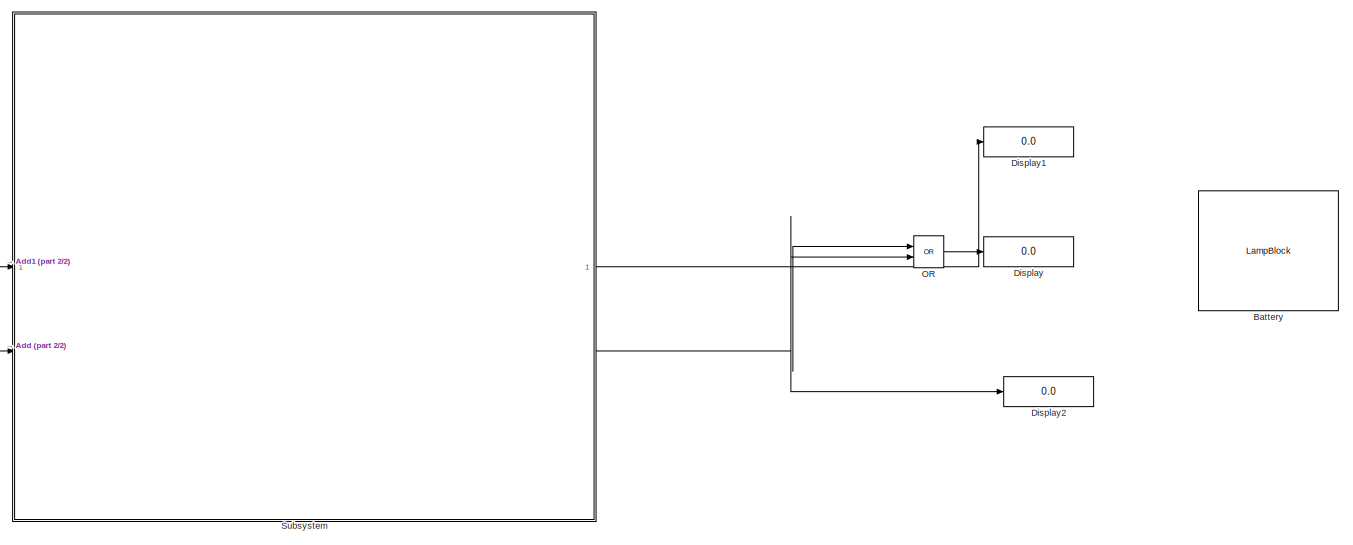
[diagram: root canvas - part 1/2, center side, full height]
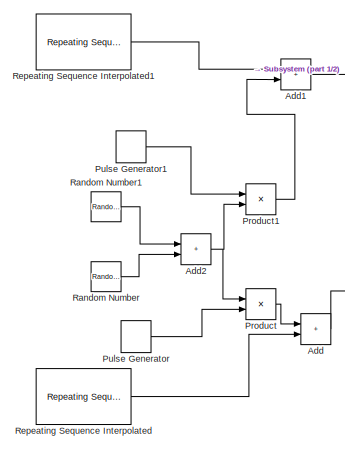
[diagram: root canvas - part 2/2, left side, full height]
MODEL slx_61902cf18430
KIND model
CONFIG AbsTol = auto
CONFIG EnableMultiTasking = off
CONFIG FixedStep = auto
CONFIG MaxStep = auto
CONFIG MinStep = auto
CONFIG RelTol = 1e-3
CONFIG SampleTimeConstraint = Unconstrained
CONFIG SolverName = VariableStepAuto
CONFIG StartTime = 0.0
CONFIG StopTime = inf
BLOCK [Sum] Add
  IconShape = rectangular
BLOCK [Sum] Add1
  IconShape = rectangular
BLOCK [Sum] Add2
  IconShape = rectangular
BLOCK [LampBlock] Battery
  Icon = Battery
  LabelPosition = Bottom
BLOCK [Display] Display
  Decimation = 1
BLOCK [Display] Display1
  Decimation = 1
BLOCK [Display] Display2
  Decimation = 1
BLOCK [Logic] OR
  AllPortsSameDT = off
  IconShape = distinctive
  Operator = OR
  OutDataTypeStr = boolean
BLOCK [Product] Product
BLOCK [Product] Product1
BLOCK [DiscretePulseGenerator] Pulse Generator
  Period = 22
  PhaseDelay = 20
  PulseType = Time based
  PulseWidth = 2
BLOCK [DiscretePulseGenerator] Pulse Generator1
  Period = 37
  PhaseDelay = 40
  PulseType = Time based
  PulseWidth = 2
BLOCK [RandomNumber] Random Number
  SampleTime = 0.1
  Variance = 7
BLOCK [RandomNumber] Random Number1
  Mean = -5
  SampleTime = 0.1
  Variance = 13
BLOCK [Reference] Repeating Sequence Interpolated  REF=simulink/Sources/Repeating
Sequence
Interpolated
  SourceBlock = simulink/Sources/Repeating\nSequence\nInterpolated
  SourceType = Repeating Sequence Interpolated
BLOCK [Reference] Repeating Sequence Interpolated1  REF=simulink/Sources/Repeating
Sequence
Interpolated
  SourceBlock = simulink/Sources/Repeating\nSequence\nInterpolated
  SourceType = Repeating Sequence Interpolated
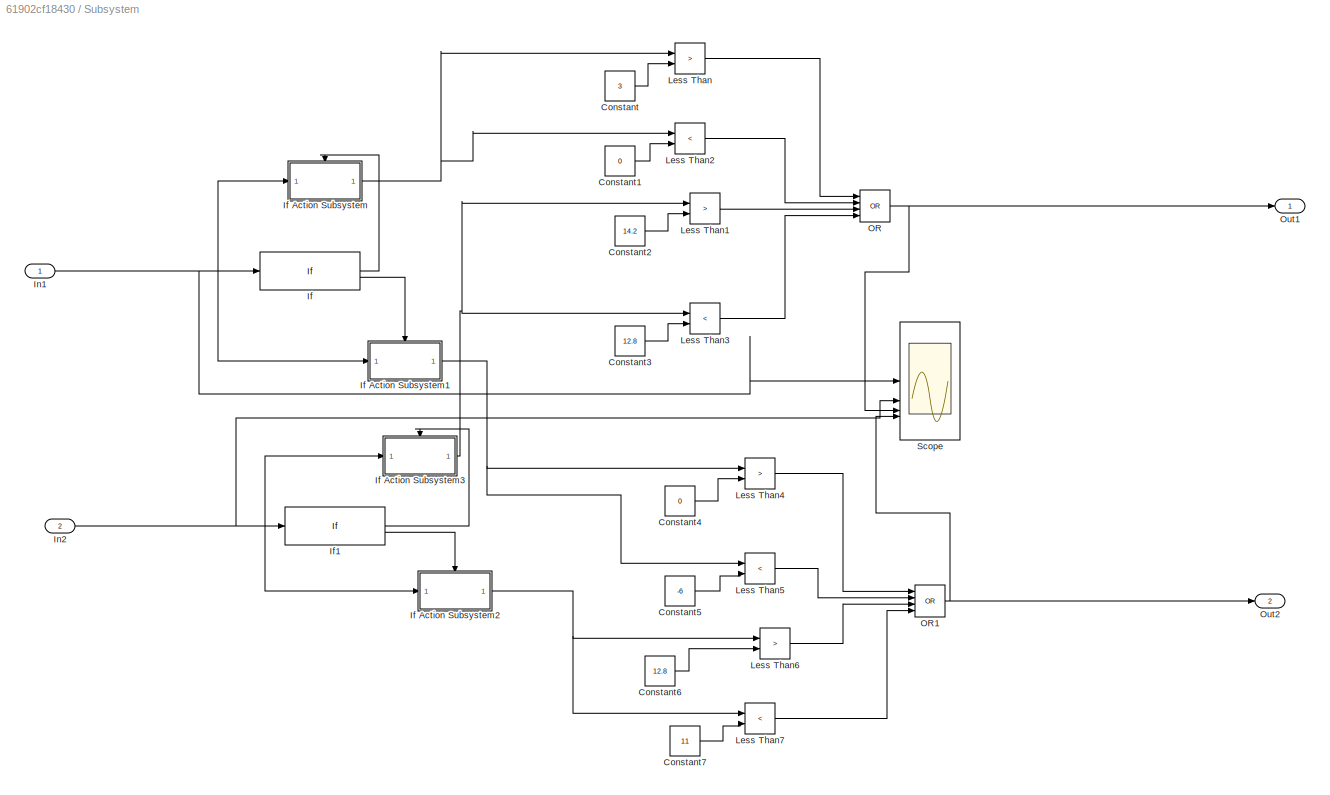
BLOCK [SubSystem] Subsystem
BLOCK [Constant] Subsystem/Constant
  Value = 3
BLOCK [Constant] Subsystem/Constant1
  Value = 0
BLOCK [Constant] Subsystem/Constant2
  Value = 14.2
BLOCK [Constant] Subsystem/Constant3
  Value = 12.8
BLOCK [Constant] Subsystem/Constant4
  Value = 0
BLOCK [Constant] Subsystem/Constant5
  Value = -6
BLOCK [Constant] Subsystem/Constant6
  Value = 12.8
BLOCK [Constant] Subsystem/Constant7
  Value = 11
BLOCK [If] Subsystem/If
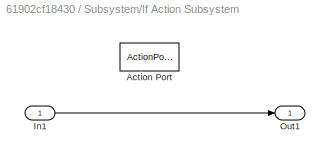
BLOCK [SubSystem] Subsystem/If Action Subsystem
  TreatAsAtomicUnit = on
BLOCK [ActionPort] Subsystem/If Action Subsystem/Action Port
  ActionPortLabel = if(u1 > 0)
BLOCK [Inport] Subsystem/If Action Subsystem/In1
BLOCK [Outport] Subsystem/If Action Subsystem/Out1
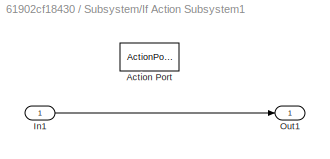
BLOCK [SubSystem] Subsystem/If Action Subsystem1
  TreatAsAtomicUnit = on
BLOCK [ActionPort] Subsystem/If Action Subsystem1/Action Port
  ActionPortLabel = else
BLOCK [Inport] Subsystem/If Action Subsystem1/In1
BLOCK [Outport] Subsystem/If Action Subsystem1/Out1
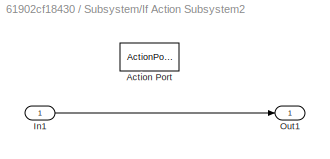
BLOCK [SubSystem] Subsystem/If Action Subsystem2
  TreatAsAtomicUnit = on
BLOCK [ActionPort] Subsystem/If Action Subsystem2/Action Port
  ActionPortLabel = else
BLOCK [Inport] Subsystem/If Action Subsystem2/In1
BLOCK [Outport] Subsystem/If Action Subsystem2/Out1
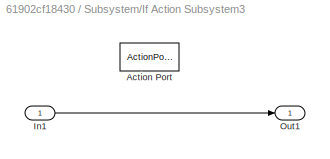
BLOCK [SubSystem] Subsystem/If Action Subsystem3
  TreatAsAtomicUnit = on
BLOCK [ActionPort] Subsystem/If Action Subsystem3/Action Port
  ActionPortLabel = if(u1 > 12.8)
BLOCK [Inport] Subsystem/If Action Subsystem3/In1
BLOCK [Outport] Subsystem/If Action Subsystem3/Out1
BLOCK [If] Subsystem/If1
  IfExpression = u1 > 12.8
BLOCK [Inport] Subsystem/In1
BLOCK [Inport] Subsystem/In2
  Port = 2
BLOCK [RelationalOperator] Subsystem/Less Than
  InputSameDT = off
  Operator = >
  OutDataTypeStr = boolean
  RndMeth = Simplest
BLOCK [RelationalOperator] Subsystem/Less Than1
  InputSameDT = off
  Operator = >
  OutDataTypeStr = boolean
  RndMeth = Simplest
BLOCK [RelationalOperator] Subsystem/Less Than2
  InputSameDT = off
  Operator = <
  OutDataTypeStr = boolean
  RndMeth = Simplest
BLOCK [RelationalOperator] Subsystem/Less Than3
  InputSameDT = off
  Operator = <
  OutDataTypeStr = boolean
  RndMeth = Simplest
BLOCK [RelationalOperator] Subsystem/Less Than4
  InputSameDT = off
  Operator = >
  OutDataTypeStr = boolean
  RndMeth = Simplest
BLOCK [RelationalOperator] Subsystem/Less Than5
  InputSameDT = off
  Operator = <
  OutDataTypeStr = boolean
  RndMeth = Simplest
BLOCK [RelationalOperator] Subsystem/Less Than6
  InputSameDT = off
  Operator = >
  OutDataTypeStr = boolean
  RndMeth = Simplest
BLOCK [RelationalOperator] Subsystem/Less Than7
  InputSameDT = off
  Operator = <
  OutDataTypeStr = boolean
  RndMeth = Simplest
BLOCK [Logic] Subsystem/OR
  AllPortsSameDT = off
  IconShape = distinctive
  Inputs = 4
  Operator = OR
  OutDataTypeStr = boolean
BLOCK [Logic] Subsystem/OR1
  AllPortsSameDT = off
  IconShape = distinctive
  Inputs = 4
  Operator = OR
  OutDataTypeStr = boolean
BLOCK [Outport] Subsystem/Out1
BLOCK [Outport] Subsystem/Out2
  Port = 2
BLOCK [Scope] Subsystem/Scope
  Floating = off
  NumInputPorts = 4
  ScopeSpecificationString = Simulink.scopes.TimeScopeBlockCfg('CurrentConfiguration', extmgr.ConfigurationSet(extmgr.Configuration('Core','General UI',true),extmgr.Configuration('Core','Source UI',true),extmgr.Configuration('Sources','WiredSimulink',true),extmgr.Configuration('Visuals','Time Domain',true,'SerializedDisplays',{struct('MinYLimReal','-7.125','MaxYLimReal','4.125','YLabelReal','','MinYLimMag','0.00000','MaxYLimM...<+3352ch>
LINE Add1:1 -> Subsystem:1
NET Add2:1 -> Product1:2, Product:1
LINE Add:1 -> Subsystem:2
LINE OR:1 -> Display:1
LINE Product1:1 -> Add1:2
LINE Product:1 -> Add:1
LINE Pulse Generator1:1 -> Product1:1
LINE Pulse Generator:1 -> Product:2
LINE Random Number1:1 -> Add2:1
LINE Random Number:1 -> Add2:2
LINE Repeating Sequence Interpolated1:1 -> Add1:1
LINE Repeating Sequence Interpolated:1 -> Add:2
LINE Subsystem/Constant1:1 -> Subsystem/Less Than2:2
LINE Subsystem/Constant2:1 -> Subsystem/Less Than1:2
LINE Subsystem/Constant3:1 -> Subsystem/Less Than3:2
LINE Subsystem/Constant4:1 -> Subsystem/Less Than4:2
LINE Subsystem/Constant5:1 -> Subsystem/Less Than5:2
LINE Subsystem/Constant6:1 -> Subsystem/Less Than6:2
LINE Subsystem/Constant7:1 -> Subsystem/Less Than7:2
LINE Subsystem/Constant:1 -> Subsystem/Less Than:2
LINE Subsystem/If Action Subsystem/In1:1 -> Subsystem/If Action Subsystem/Out1:1
LINE Subsystem/If Action Subsystem1/In1:1 -> Subsystem/If Action Subsystem1/Out1:1
NET Subsystem/If Action Subsystem1:1 -> Subsystem/Less Than4:1, Subsystem/Less Than5:1
LINE Subsystem/If Action Subsystem2/In1:1 -> Subsystem/If Action Subsystem2/Out1:1
NET Subsystem/If Action Subsystem2:1 -> Subsystem/Less Than6:1, Subsystem/Less Than7:1
LINE Subsystem/If Action Subsystem3/In1:1 -> Subsystem/If Action Subsystem3/Out1:1
NET Subsystem/If Action Subsystem3:1 -> Subsystem/Less Than1:1, Subsystem/Less Than3:1
NET Subsystem/If Action Subsystem:1 -> Subsystem/Less Than2:1, Subsystem/Less Than:1
LINE Subsystem/If1:1 -> Subsystem/If Action Subsystem3:ifaction
LINE Subsystem/If1:2 -> Subsystem/If Action Subsystem2:ifaction
LINE Subsystem/If:1 -> Subsystem/If Action Subsystem:ifaction
LINE Subsystem/If:2 -> Subsystem/If Action Subsystem1:ifaction
NET Subsystem/In1:1 -> Subsystem/If Action Subsystem1:1, Subsystem/If Action Subsystem:1, Subsystem/If:1, Subsystem/Scope:1
NET Subsystem/In2:1 -> Subsystem/If Action Subsystem2:1, Subsystem/If Action Subsystem3:1, Subsystem/If1:1, Subsystem/Scope:2
LINE Subsystem/Less Than1:1 -> Subsystem/OR:3
LINE Subsystem/Less Than2:1 -> Subsystem/OR:2
LINE Subsystem/Less Than3:1 -> Subsystem/OR:4
LINE Subsystem/Less Than4:1 -> Subsystem/OR1:1
LINE Subsystem/Less Than5:1 -> Subsystem/OR1:2
LINE Subsystem/Less Than6:1 -> Subsystem/OR1:3
LINE Subsystem/Less Than7:1 -> Subsystem/OR1:4
LINE Subsystem/Less Than:1 -> Subsystem/OR:1
NET Subsystem/OR1:1 -> Subsystem/Out2:1, Subsystem/Scope:4
NET Subsystem/OR:1 -> Subsystem/Out1:1, Subsystem/Scope:3
NET Subsystem:1 -> Display1:1, OR:1
NET Subsystem:2 -> Display2:1, OR:2
note: NET lines group one-source signal fan-out (src -> all destinations, sorted); 1:1 wires keep LINE
